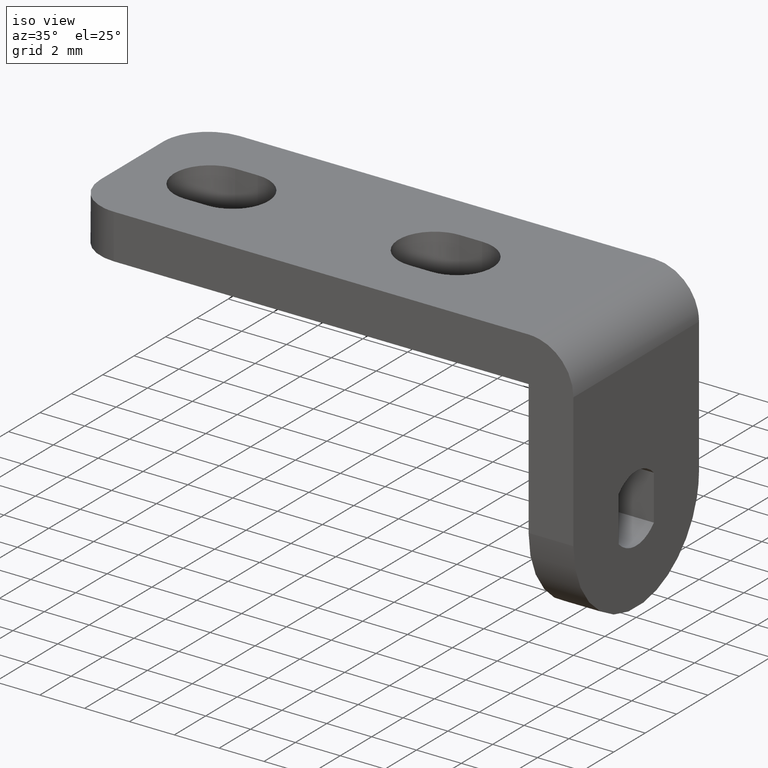
[diagram: clean part render]
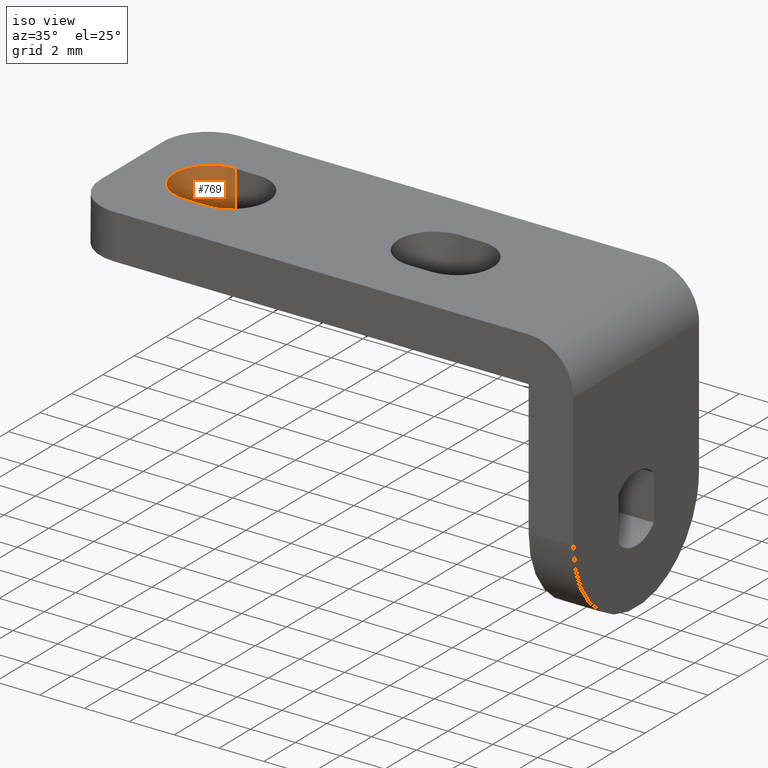
[diagram: same view with one face highlighted and labeled with its STEP entity id]
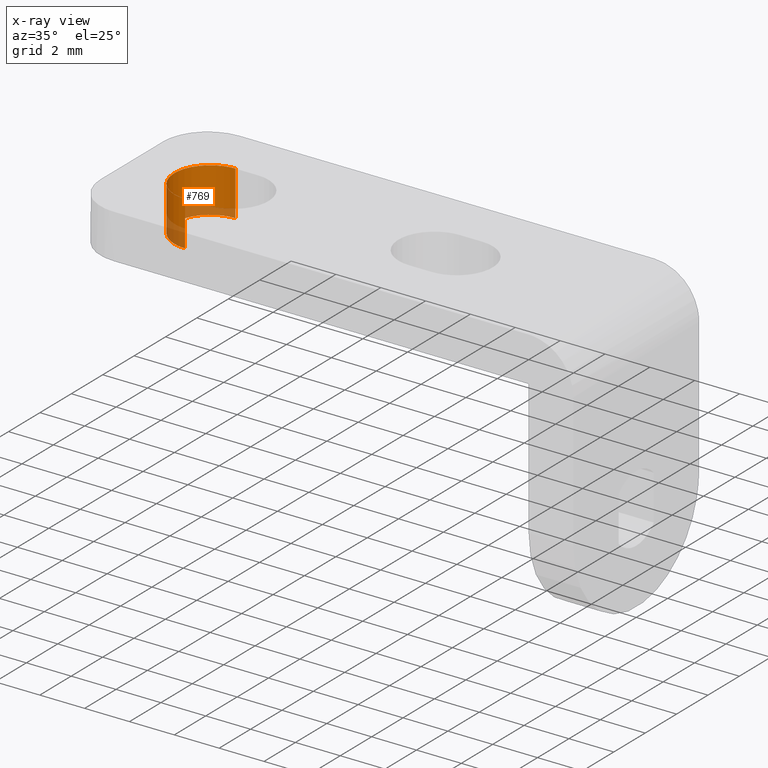
[diagram: x-ray of the same camera — body ghosted, the highlighted face saturated]
A machine part, iso view. The second image highlights one B-rep face of the part: STEP entity #769.
The next image is the same camera in x-ray: the body ghosted, the highlighted face saturated — about 24% of this face is hidden behind the body in this view.
In plain terms, the highlighted face is a freeform B-spline surface patch.
Its self-contained STEP definition (entity closure, byte-faithful):
#428=CARTESIAN_POINT('',(-19.0,1.600000000000000,6.000008000000221));
#429=VERTEX_POINT('',#428);
#435=CARTESIAN_POINT('',(-19.0,-1.600000000000000,6.000008000000221));
#436=VERTEX_POINT('',#435);
#437=CARTESIAN_POINT('',(-19.0,-1.600000000000000,6.000008000000221));
#438=CARTESIAN_POINT('',(-19.078534544461501,-1.600002775676719,6.000008000000231));
#439=CARTESIAN_POINT('',(-19.248699697937280,-1.587450085403152,6.000008000000212));
#440=CARTESIAN_POINT('',(-19.529925045778771,-1.520679795281658,6.000008000000214));
#441=CARTESIAN_POINT('',(-19.835267147539490,-1.380844415620376,6.000008000000236));
#442=CARTESIAN_POINT('',(-20.127581041016612,-1.155597503790804,6.000008000000202));
#443=CARTESIAN_POINT('',(-20.339174475326381,-0.894502621797516,6.000008000000256));
#444=CARTESIAN_POINT('',(-20.464592773725940,-0.656295750379034,6.000008000000147));
#445=CARTESIAN_POINT('',(-20.543210221169598,-0.440759670029338,6.000008000000279));
#446=CARTESIAN_POINT('',(-20.593587734239950,-0.209827058926134,6.000008000000191));
#447=CARTESIAN_POINT('',(-20.605831645695162,0.039497122695810,6.000008000000108));
#448=CARTESIAN_POINT('',(-20.579876870129890,0.287411685298356,6.000008000000284));
#449=CARTESIAN_POINT('',(-20.525941131110571,0.497264816237285,6.000008000000291));
#450=CARTESIAN_POINT('',(-20.432038709473240,0.727978587679179,6.000008000000210));
#451=CARTESIAN_POINT('',(-20.303559867232991,0.942334631926666,6.000008000000076));
#452=CARTESIAN_POINT('',(-20.091930600654742,1.184674269240691,6.000008000000318));
#453=CARTESIAN_POINT('',(-19.824284385367729,1.388319724216415,6.000008000000180));
#454=CARTESIAN_POINT('',(-19.445013039632869,1.556437635676681,6.000008000000245));
#455=CARTESIAN_POINT('',(-19.163629787455189,1.600081165979080,6.000008000000210));
#456=CARTESIAN_POINT('',(-19.0,1.600000000000000,6.000008000000221));
#457=B_SPLINE_CURVE_WITH_KNOTS('',3,(#437,#438,#439,#440,#441,#442,#443,#444,#445,#446,#447,#448,#449,#450,#451,#452,#453,#454,#455,#456),.UNSPECIFIED.,.F.,.U.,(4,1,1,1,1,1,1,1,1,1,1,1,1,1,1,1,1,4),(0.000000039348809,0.235605083905378,0.510500478945247,0.863937674979766,1.237010446391084,1.610080332782273,1.865336532186004,2.042059609892417,2.297316311430135,2.572180831014178,2.788180544815536,3.043425924768190,3.220144506304180,3.534313878316162,3.789570195876859,4.182278249535497,4.535712412754139,5.026579785222101),.UNSPECIFIED.);
#458=EDGE_CURVE('',#436,#429,#457,.T.);
#701=CARTESIAN_POINT('',(-19.0,-1.600000000000000,8.000008000000230));
#702=VERTEX_POINT('',#701);
#703=CARTESIAN_POINT('',(-19.0,-1.600000000000000,8.000008000000230));
#704=CARTESIAN_POINT('',(-19.0,-1.600000000000000,6.000008000000221));
#705=QUASI_UNIFORM_CURVE('',1,(#703,#704),.UNSPECIFIED.,.F.,.U.);
#706=EDGE_CURVE('',#702,#436,#705,.T.);
#717=CARTESIAN_POINT('',(-18.958116882707401,1.599451719960891,8.050008000000233));
#718=CARTESIAN_POINT('',(-18.958116882707401,1.599451719960891,5.948758000000219));
#719=CARTESIAN_POINT('',(-20.643587316548636,1.643587316548642,8.050008000000235));
#720=CARTESIAN_POINT('',(-20.643587316548636,1.643587316548642,5.948758000000219));
#721=CARTESIAN_POINT('',(-20.599451719960889,-0.041883117292597,8.050008000000233));
#722=CARTESIAN_POINT('',(-20.599451719960889,-0.041883117292597,5.948758000000219));
#723=CARTESIAN_POINT('',(-20.555316123373142,-1.727353551133836,8.050008000000235));
#724=CARTESIAN_POINT('',(-20.555316123373142,-1.727353551133836,5.948758000000219));
#725=CARTESIAN_POINT('',(-18.874465446835451,-1.595067733973004,8.050008000000233));
#726=CARTESIAN_POINT('',(-18.874465446835451,-1.595067733973004,5.948758000000219));
#734=(BOUNDED_SURFACE()B_SPLINE_SURFACE(1,2,((#717,#719,#721,#723,#725),(#718,#720,#722,#724,#726)),.UNSPECIFIED.,.F.,.F.,.U.)B_SPLINE_SURFACE_WITH_KNOTS((2,2),(3,2,3),(0.0,2.101250000000014),(0.0,2.749656998187751,5.499313996375502),.UNSPECIFIED.)GEOMETRIC_REPRESENTATION_ITEM()RATIONAL_B_SPLINE_SURFACE(((1.0,0.688354575693754,1.0,0.688354575693754,1.0),(1.0,0.688354575693754,1.0,0.688354575693754,1.0)))REPRESENTATION_ITEM('')SURFACE());
#735=ORIENTED_EDGE('',*,*,#458,.T.);
#736=CARTESIAN_POINT('',(-19.0,1.600000000000000,8.000008000000230));
#737=VERTEX_POINT('',#736);
#738=CARTESIAN_POINT('',(-19.0,1.600000000000000,8.000008000000230));
#739=CARTESIAN_POINT('',(-19.0,1.600000000000000,6.000008000000221));
#740=QUASI_UNIFORM_CURVE('',1,(#738,#739),.UNSPECIFIED.,.F.,.U.);
#741=EDGE_CURVE('',#737,#429,#740,.T.);
#742=ORIENTED_EDGE('',*,*,#741,.F.);
#743=CARTESIAN_POINT('',(-19.0,-1.600000000000000,8.000008000000230));
#744=CARTESIAN_POINT('',(-19.104716467248661,-1.600013395419486,8.000008000000214));
#745=CARTESIAN_POINT('',(-19.274875626340879,-1.583230191743499,8.000008000000257));
#746=CARTESIAN_POINT('',(-19.553873954754131,-1.509708971307993,8.000008000000200));
#747=CARTESIAN_POINT('',(-19.835266740998179,-1.380845309514199,8.000008000000271));
#748=CARTESIAN_POINT('',(-20.127581200728670,-1.155597223509278,8.000008000000197));
#749=CARTESIAN_POINT('',(-20.339174451830750,-0.894502666024404,8.000008000000285));
#750=CARTESIAN_POINT('',(-20.464592772539309,-0.656295750933975,8.000008000000136));
#751=CARTESIAN_POINT('',(-20.543210221168280,-0.440759670029605,8.000008000000301));
#752=CARTESIAN_POINT('',(-20.593587734240170,-0.209827058926089,8.000008000000195));
#753=CARTESIAN_POINT('',(-20.605831645695101,0.039497122695798,8.000008000000083));
#754=CARTESIAN_POINT('',(-20.579876870129901,0.287411685298358,8.000008000000314));
#755=CARTESIAN_POINT('',(-20.525941131110571,0.497264816237285,8.000008000000316));
#756=CARTESIAN_POINT('',(-20.432038709473240,0.727978587679179,8.000008000000221));
#757=CARTESIAN_POINT('',(-20.303559867232980,0.942334631926666,8.000008000000035));
#758=CARTESIAN_POINT('',(-20.091930600654749,1.184674269240691,8.000008000000360));
#759=CARTESIAN_POINT('',(-19.824284385367729,1.388319724216415,8.000008000000172));
#760=CARTESIAN_POINT('',(-19.445013039632862,1.556437635676681,8.000008000000275));
#761=CARTESIAN_POINT('',(-19.163629787455189,1.600081165979080,8.000008000000211));
#762=CARTESIAN_POINT('',(-19.0,1.600000000000000,8.000008000000230));
#763=B_SPLINE_CURVE_WITH_KNOTS('',3,(#743,#744,#745,#746,#747,#748,#749,#750,#751,#752,#753,#754,#755,#756,#757,#758,#759,#760,#761,#762),.UNSPECIFIED.,.F.,.U.,(4,1,1,1,1,1,1,1,1,1,1,1,1,1,1,1,1,4),(0.000000039348809,0.314147988150244,0.510500478945247,0.863937674979766,1.237010446391084,1.610080332782273,1.865336532186004,2.042059609892417,2.297316311430135,2.572180831014178,2.788180544815536,3.043425924768190,3.220144506304180,3.534313878316162,3.789570195876859,4.182278249535497,4.535712412754139,5.026579785222101),.UNSPECIFIED.);
#764=EDGE_CURVE('',#702,#737,#763,.T.);
#765=ORIENTED_EDGE('',*,*,#764,.F.);
#766=ORIENTED_EDGE('',*,*,#706,.T.);
#767=EDGE_LOOP('',(#735,#742,#765,#766));
#768=FACE_OUTER_BOUND('',#767,.T.);
#769=ADVANCED_FACE('',(#768),#734,.F.);